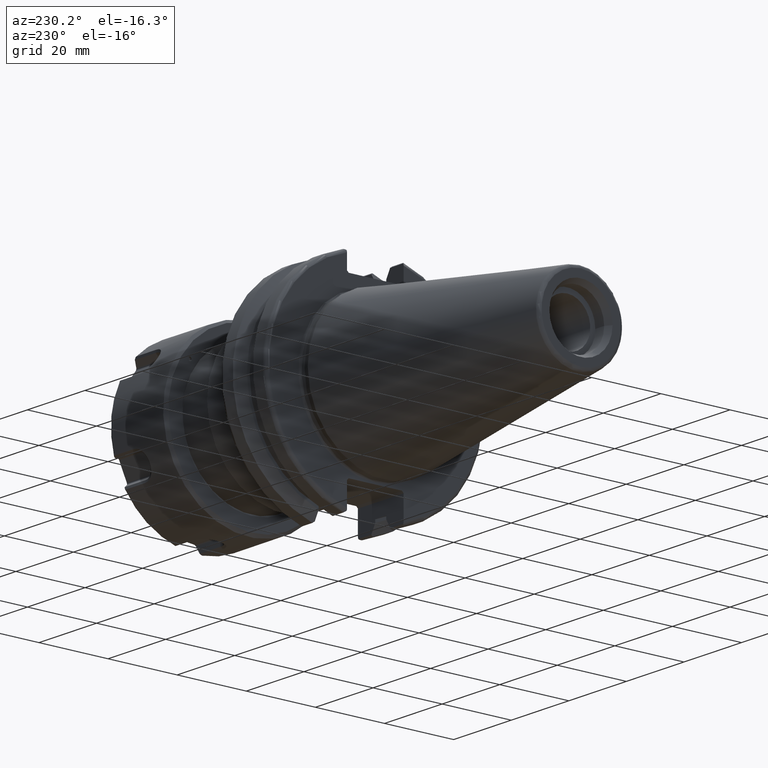
[diagram: clean part render]
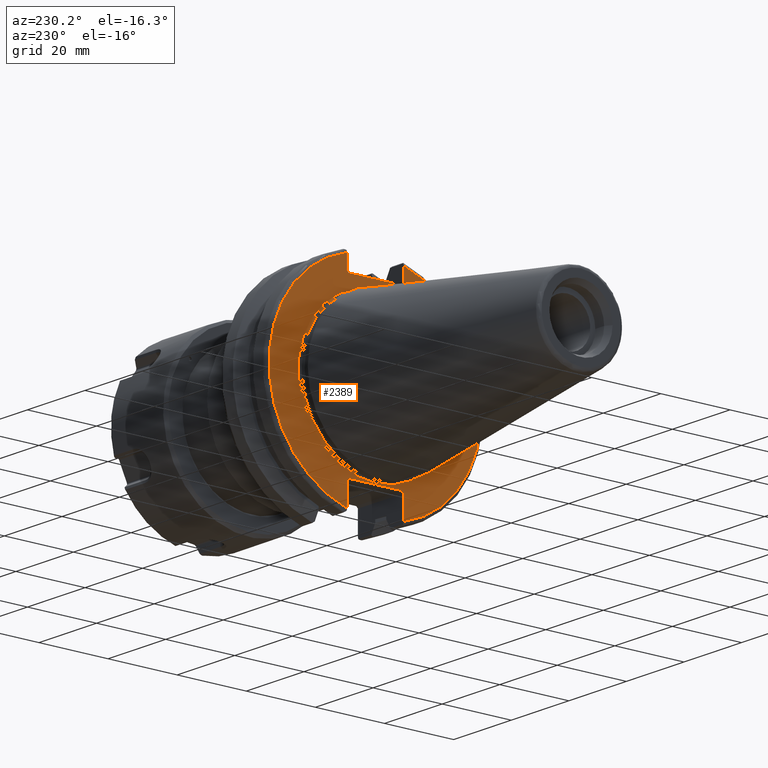
[diagram: same view with one face highlighted and labeled with its STEP entity id]
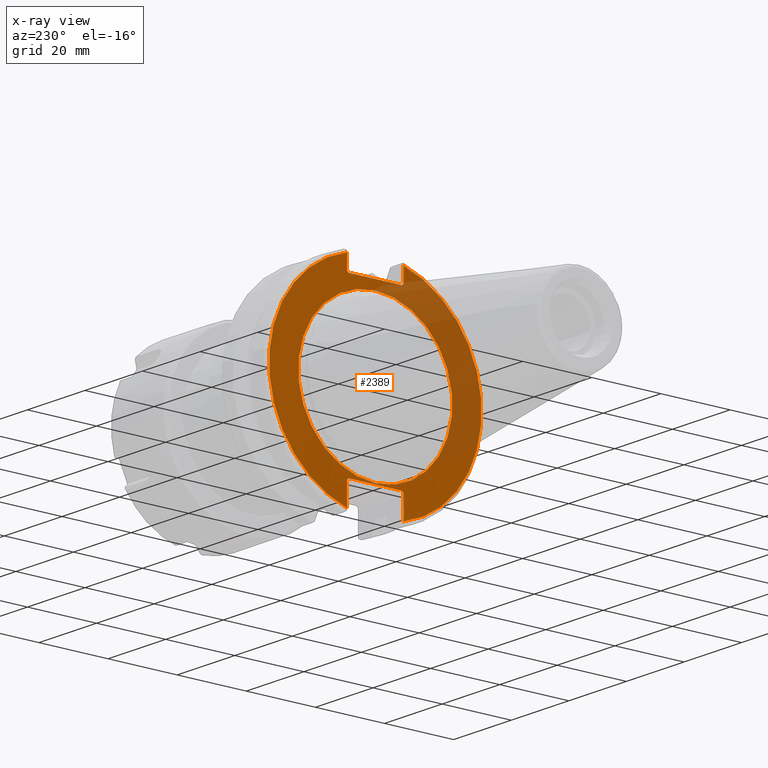
[diagram: x-ray of the same camera — body ghosted, the highlighted face saturated]
A machine part, auxiliary view. The second image highlights one B-rep face of the part: STEP entity #2389.
The next image is the same camera in x-ray: the body ghosted, the highlighted face saturated — about 33% of this face is hidden behind the body in this view.
In plain terms, the highlighted planar face has unit normal (-1, 0, 0).
Its self-contained STEP definition (entity closure, byte-faithful):
#237=FACE_BOUND('',#503,.T.);
#251=PLANE('',#2623);
#356=FACE_OUTER_BOUND('',#502,.T.);
#502=EDGE_LOOP('',(#1684,#1685,#1686,#1687,#1688,#1689,#1690,#1691,#1692,
#1693,#1694,#1695));
#503=EDGE_LOOP('',(#1696));
#652=LINE('',#3545,#806);
#653=LINE('',#3547,#807);
#654=LINE('',#3549,#808);
#655=LINE('',#3551,#809);
#656=LINE('',#3553,#810);
#657=LINE('',#3557,#811);
#658=LINE('',#3559,#812);
#659=LINE('',#3561,#813);
#660=LINE('',#3563,#814);
#661=LINE('',#3564,#815);
#806=VECTOR('',#2910,10.);
#807=VECTOR('',#2911,10.);
#808=VECTOR('',#2912,10.);
#809=VECTOR('',#2913,10.);
#810=VECTOR('',#2914,10.);
#811=VECTOR('',#2917,10.);
#812=VECTOR('',#2918,10.);
#813=VECTOR('',#2919,10.);
#814=VECTOR('',#2920,10.);
#815=VECTOR('',#2921,10.);
#967=CIRCLE('',#2621,22.3);
#969=CIRCLE('',#2624,30.75);
#970=CIRCLE('',#2625,30.75);
#1072=VERTEX_POINT('',#3536);
#1073=VERTEX_POINT('',#3541);
#1074=VERTEX_POINT('',#3542);
#1075=VERTEX_POINT('',#3544);
#1076=VERTEX_POINT('',#3546);
#1077=VERTEX_POINT('',#3548);
#1078=VERTEX_POINT('',#3550);
#1079=VERTEX_POINT('',#3552);
#1080=VERTEX_POINT('',#3554);
#1081=VERTEX_POINT('',#3556);
#1082=VERTEX_POINT('',#3558);
#1083=VERTEX_POINT('',#3560);
#1084=VERTEX_POINT('',#3562);
#1307=EDGE_CURVE('',#1072,#1072,#967,.T.);
#1309=EDGE_CURVE('',#1073,#1074,#969,.T.);
#1310=EDGE_CURVE('',#1073,#1075,#652,.T.);
#1311=EDGE_CURVE('',#1076,#1075,#653,.T.);
#1312=EDGE_CURVE('',#1076,#1077,#654,.T.);
#1313=EDGE_CURVE('',#1078,#1077,#655,.T.);
#1314=EDGE_CURVE('',#1078,#1079,#656,.T.);
#1315=EDGE_CURVE('',#1080,#1079,#970,.T.);
#1316=EDGE_CURVE('',#1080,#1081,#657,.T.);
#1317=EDGE_CURVE('',#1082,#1081,#658,.T.);
#1318=EDGE_CURVE('',#1082,#1083,#659,.T.);
#1319=EDGE_CURVE('',#1084,#1083,#660,.T.);
#1320=EDGE_CURVE('',#1084,#1074,#661,.T.);
#1684=ORIENTED_EDGE('',*,*,#1309,.F.);
#1685=ORIENTED_EDGE('',*,*,#1310,.T.);
#1686=ORIENTED_EDGE('',*,*,#1311,.F.);
#1687=ORIENTED_EDGE('',*,*,#1312,.T.);
#1688=ORIENTED_EDGE('',*,*,#1313,.F.);
#1689=ORIENTED_EDGE('',*,*,#1314,.T.);
#1690=ORIENTED_EDGE('',*,*,#1315,.F.);
#1691=ORIENTED_EDGE('',*,*,#1316,.T.);
#1692=ORIENTED_EDGE('',*,*,#1317,.F.);
#1693=ORIENTED_EDGE('',*,*,#1318,.T.);
#1694=ORIENTED_EDGE('',*,*,#1319,.F.);
#1695=ORIENTED_EDGE('',*,*,#1320,.T.);
#1696=ORIENTED_EDGE('',*,*,#1307,.F.);
#2389=ADVANCED_FACE('',(#356,#237),#251,.T.);
#2621=AXIS2_PLACEMENT_3D('',#3538,#2902,#2903);
#2623=AXIS2_PLACEMENT_3D('',#3540,#2906,#2907);
#2624=AXIS2_PLACEMENT_3D('',#3543,#2908,#2909);
#2625=AXIS2_PLACEMENT_3D('',#3555,#2915,#2916);
#2902=DIRECTION('center_axis',(-1.,0.,0.));
#2903=DIRECTION('ref_axis',(0.,-1.,1.83697019872103E-16));
#2906=DIRECTION('center_axis',(-1.,0.,0.));
#2907=DIRECTION('ref_axis',(0.,0.,1.));
#2908=DIRECTION('center_axis',(1.,0.,0.));
#2909=DIRECTION('ref_axis',(0.,-1.,1.60812264967664E-16));
#2910=DIRECTION('',(0.,0.,-1.));
#2911=DIRECTION('',(0.,-0.70710678118655,0.707106781186545));
#2912=DIRECTION('',(0.,1.,0.));
#2913=DIRECTION('',(0.,-0.707106781186549,-0.707106781186546));
#2914=DIRECTION('',(0.,0.,1.));
#2915=DIRECTION('center_axis',(1.,0.,0.));
#2916=DIRECTION('ref_axis',(0.,1.,1.60812264967664E-16));
#2917=DIRECTION('',(0.,0.,1.));
#2918=DIRECTION('',(0.,0.707106781186549,-0.707106781186546));
#2919=DIRECTION('',(0.,-1.,0.));
#2920=DIRECTION('',(0.,0.707106781186549,0.707106781186546));
#2921=DIRECTION('',(0.,0.,-1.));
#3536=CARTESIAN_POINT('',(3.175,-2.7309623620986E-15,22.3));
#3538=CARTESIAN_POINT('Origin',(3.175,0.,0.));
#3540=CARTESIAN_POINT('Origin',(3.175,31.75,0.));
#3541=CARTESIAN_POINT('',(3.175,-8.18999999999999,29.6392712461019));
#3542=CARTESIAN_POINT('',(3.175,-8.19,-29.6392712461019));
#3543=CARTESIAN_POINT('Origin',(3.175,0.,0.));
#3544=CARTESIAN_POINT('',(3.175,-8.18999999999999,25.5));
#3545=CARTESIAN_POINT('',(3.175,-8.18999999999999,12.5));
#3546=CARTESIAN_POINT('',(3.175,-7.68999999999999,25.));
#3547=CARTESIAN_POINT('',(3.175,8.29500000000007,9.01500000000004));
#3548=CARTESIAN_POINT('',(3.175,7.69,25.));
#3549=CARTESIAN_POINT('',(3.175,15.875,25.));
#3550=CARTESIAN_POINT('',(3.175,8.19,25.5));
#3551=CARTESIAN_POINT('',(3.175,7.58000000000002,24.89));
#3552=CARTESIAN_POINT('',(3.175,8.19,29.6392712461019));
#3553=CARTESIAN_POINT('',(3.175,8.19,12.5));
#3554=CARTESIAN_POINT('',(3.175,8.18999999999999,-29.6392712461019));
#3555=CARTESIAN_POINT('Origin',(3.175,0.,0.));
#3556=CARTESIAN_POINT('',(3.175,8.18999999999999,-23.1));
#3557=CARTESIAN_POINT('',(3.175,8.18999999999999,-11.3));
#3558=CARTESIAN_POINT('',(3.175,7.69,-22.6));
#3559=CARTESIAN_POINT('',(3.175,8.18000000000002,-23.09));
#3560=CARTESIAN_POINT('',(3.175,-7.69,-22.6));
#3561=CARTESIAN_POINT('',(3.175,15.875,-22.6));
#3562=CARTESIAN_POINT('',(3.175,-8.19,-23.1));
#3563=CARTESIAN_POINT('',(3.175,7.69500000000004,-7.21500000000002));
#3564=CARTESIAN_POINT('',(3.175,-8.19,-11.3));